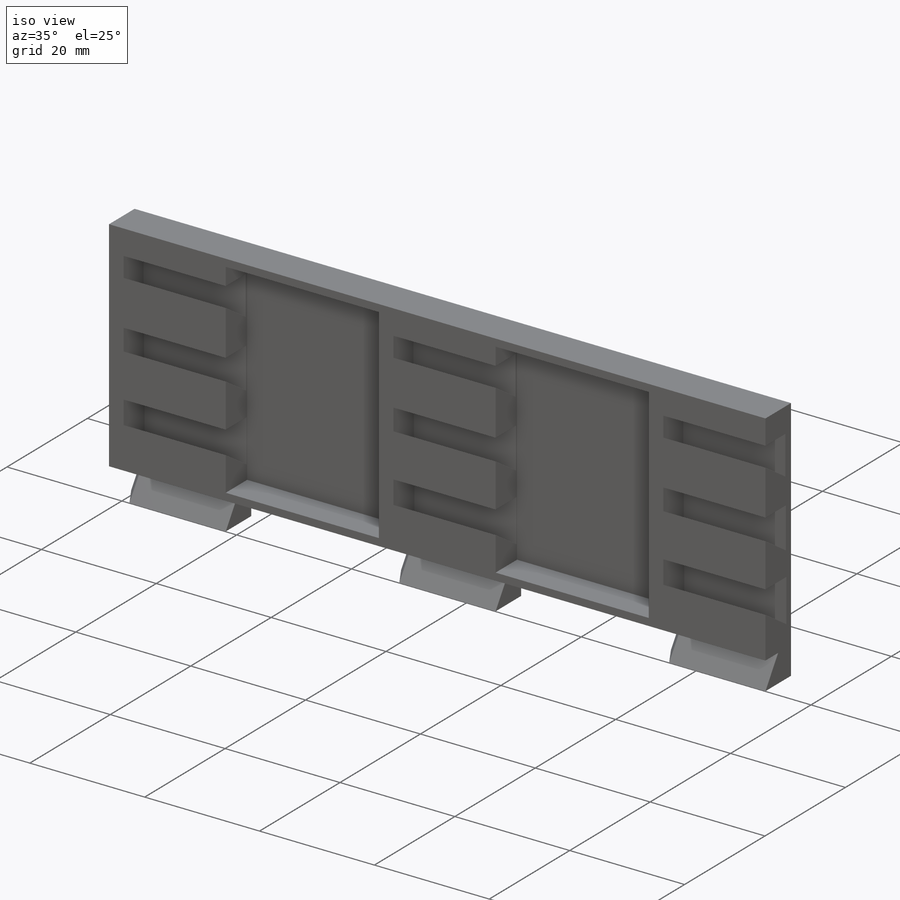
[diagram: iso view]
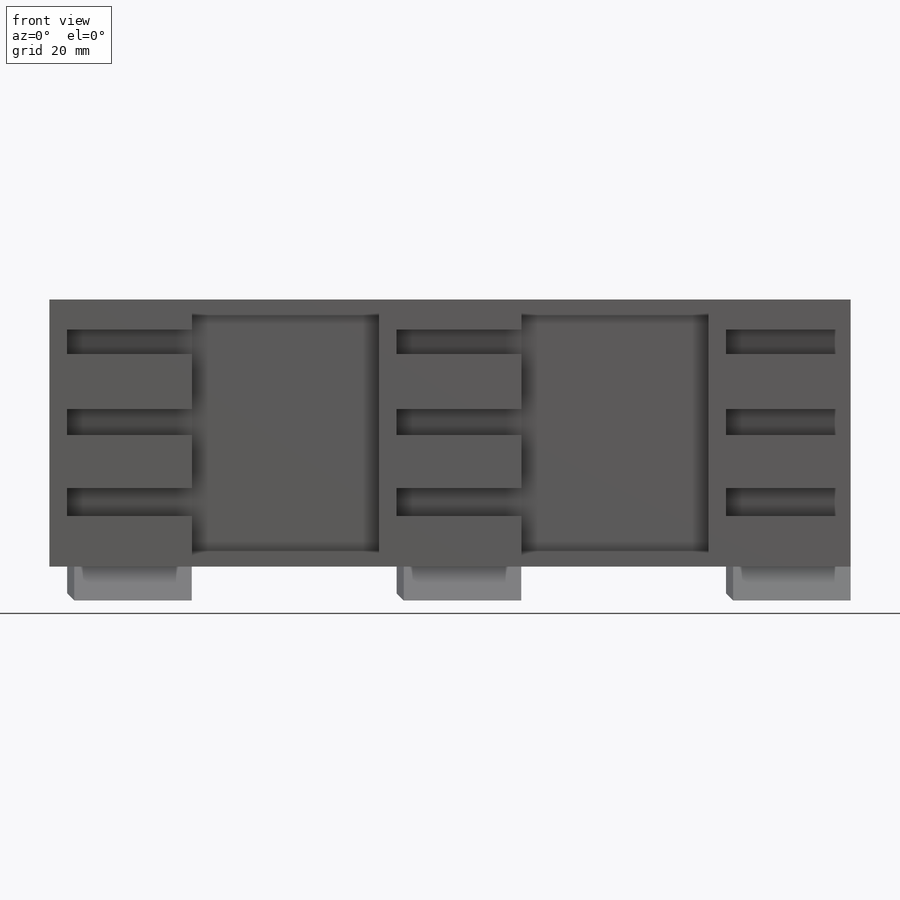
[diagram: front view]
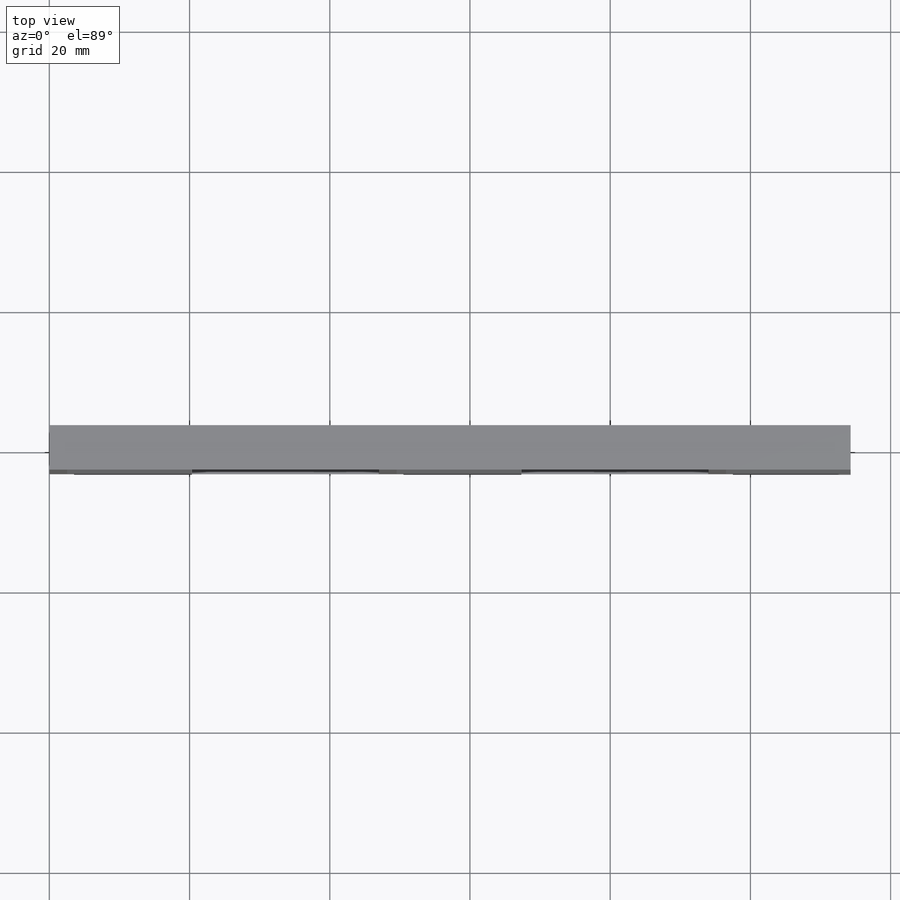
[diagram: top view]
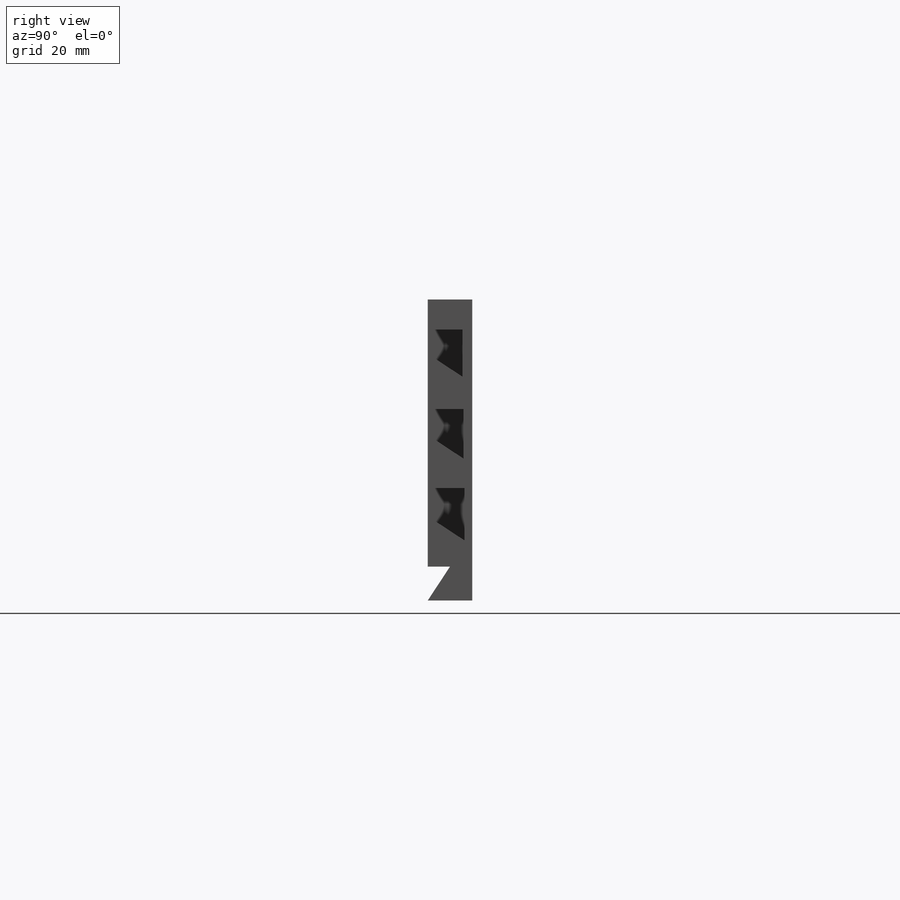
[diagram: right view]
SOLIDWORKS PART (.sldprt)
format: sldprt  version: not decoded by parser v0  size: 317,440 bytes
history: native  units: mm
features: sketch x5, cut_extrude x3, material x1, extrude x1, pattern_linear x1, chamfer x1 (+12 scaffold rows collapsed)
feature tree (24):
  scaffold x12  (default folders/planes/origin — collapsed)
  material  "ABS"
  sketch  "Sketch1"  dims[D1=15.875mm D2=149.86mm]
  sketch  "Sketch2"  dims[D1=6.35mm D2=38.1mm D3=4.826mm D4=6.35mm]
  extrude  "Boss-Extrude1"  Depth=114.3mm
  sketch  "Sketch4"  dims[D1=11.43mm D2=11.43mm D3=6.35mm D4=4.826mm D5=0.127mm D6=0.254mm D7=0.381mm]
  cut_extrude  "Cut-Extrude2"  Depth=17.78mm
  pattern_linear  "LPattern2"  Count1=3 Count2=1 Spacing1=46.99mm Spacing2=2.54mm
  sketch  "Sketch5"  dims[D1=2.54mm D2=1.27mm D3=1.27mm]
  cut_extrude  "Cut-Extrude3"  Depth=5.334mm
  sketch  "Sketch6"
  cut_extrude  "Cut-Extrude4"  [1 undecoded]
  chamfer  "Chamfer1"  Distance=1.016mm Angle=45deg
decode coverage: 9 of 11 modeling features carry decoded parameters
note: 1 parameter value undecoded
note: suppression state not decoded; provenance and decode notes live in map.json
